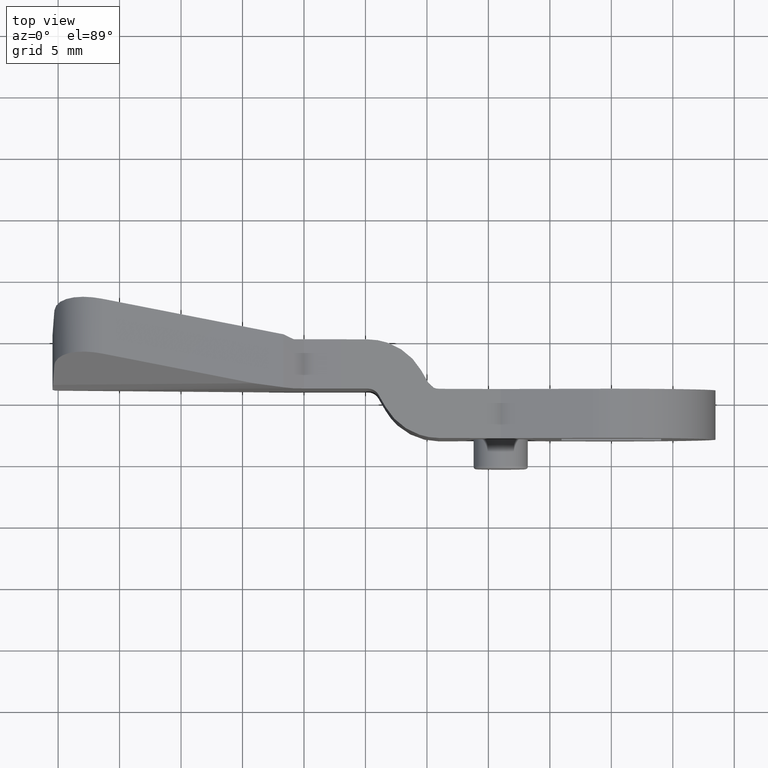
[diagram: clean part render]
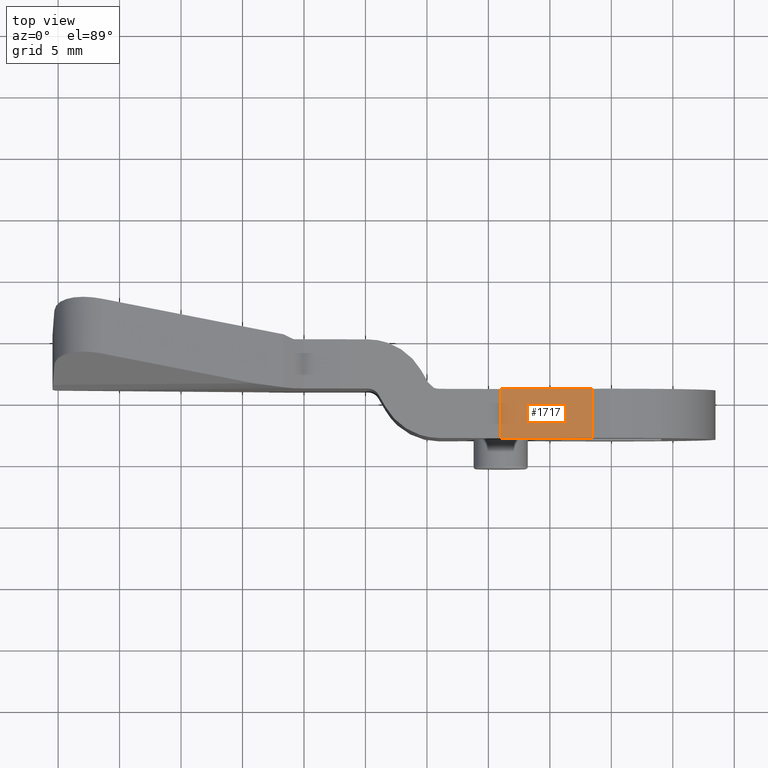
[diagram: same view with one face highlighted and labeled with its STEP entity id]
A machine part, top view. The second image highlights one B-rep face of the part: STEP entity #1717.
In plain terms, the highlighted face is a freeform B-spline surface patch.
Its self-contained STEP definition (entity closure, byte-faithful):
#1682=CARTESIAN_POINT('',(-1.150324635622295,-8.199800003991927,8.430352692888473));
#1683=CARTESIAN_POINT('',(-9.373438128029429,-8.199800003991927,6.931953255047347));
#1684=CARTESIAN_POINT('',(-1.150324635622295,-3.800199899905793,8.430352692888473));
#1685=CARTESIAN_POINT('',(-9.373438128029429,-3.800199899905793,6.931953255047347));
#1686=B_SPLINE_SURFACE_WITH_KNOTS('',1,1,((#1682,#1684),(#1683,#1685)),.UNSPECIFIED.,.F.,.F.,.U.,(2,2),(2,2),(0.0,8.358516398520186),(0.0,4.399600104086133),.UNSPECIFIED.);
#1687=CARTESIAN_POINT('',(-1.523762737230910,-8.000000189999911,8.362305542373589));
#1688=VERTEX_POINT('',#1687);
#1689=CARTESIAN_POINT('',(-1.523762737230875,-4.000000000000116,8.362305542373401));
#1690=VERTEX_POINT('',#1689);
#1691=CARTESIAN_POINT('',(-1.523762737230910,-8.000000189999911,8.362305542373589));
#1692=CARTESIAN_POINT('',(-1.523762737230875,-4.000000000000116,8.362305542373401));
#1693=QUASI_UNIFORM_CURVE('',1,(#1691,#1692),.UNSPECIFIED.,.F.,.U.);
#1694=EDGE_CURVE('',#1688,#1690,#1693,.T.);
#1695=ORIENTED_EDGE('',*,*,#1694,.T.);
#1696=CARTESIAN_POINT('',(-9.000000427477460,-4.000000000000116,7.000000332482490));
#1697=VERTEX_POINT('',#1696);
#1698=CARTESIAN_POINT('',(-1.523762737230875,-4.000000000000116,8.362305542373401));
#1699=CARTESIAN_POINT('',(-9.000000427477460,-4.000000000000116,7.000000332482490));
#1700=QUASI_UNIFORM_CURVE('',1,(#1698,#1699),.UNSPECIFIED.,.F.,.U.);
#1701=EDGE_CURVE('',#1690,#1697,#1700,.T.);
#1702=ORIENTED_EDGE('',*,*,#1701,.T.);
#1703=CARTESIAN_POINT('',(-9.000000427477460,-8.000000189999911,7.000000332482490));
#1704=VERTEX_POINT('',#1703);
#1705=CARTESIAN_POINT('',(-9.000000427477460,-8.000000189999911,7.000000332482490));
#1706=CARTESIAN_POINT('',(-9.000000427477460,-4.000000000000116,7.000000332482490));
#1707=QUASI_UNIFORM_CURVE('',1,(#1705,#1706),.UNSPECIFIED.,.F.,.U.);
#1708=EDGE_CURVE('',#1704,#1697,#1707,.T.);
#1709=ORIENTED_EDGE('',*,*,#1708,.F.);
#1710=CARTESIAN_POINT('',(-1.523762737230910,-8.000000189999911,8.362305542373589));
#1711=CARTESIAN_POINT('',(-9.000000427477460,-8.000000189999911,7.000000332482490));
#1712=QUASI_UNIFORM_CURVE('',1,(#1710,#1711),.UNSPECIFIED.,.F.,.U.);
#1713=EDGE_CURVE('',#1688,#1704,#1712,.T.);
#1714=ORIENTED_EDGE('',*,*,#1713,.F.);
#1715=EDGE_LOOP('',(#1695,#1702,#1709,#1714));
#1716=FACE_OUTER_BOUND('',#1715,.T.);
#1717=ADVANCED_FACE('',(#1716),#1686,.F.);